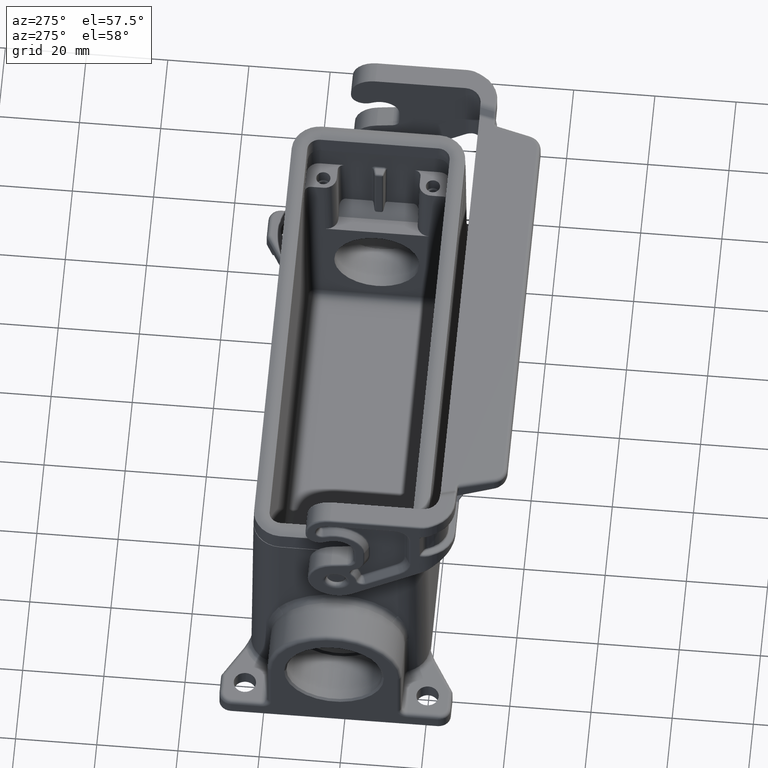
[diagram: clean part render]
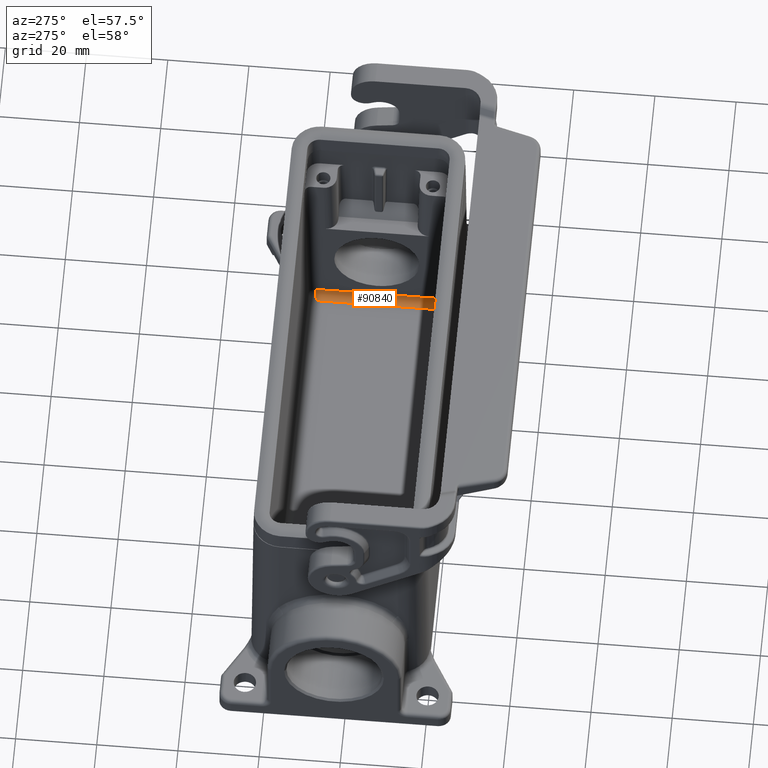
[diagram: same view with one face highlighted and labeled with its STEP entity id]
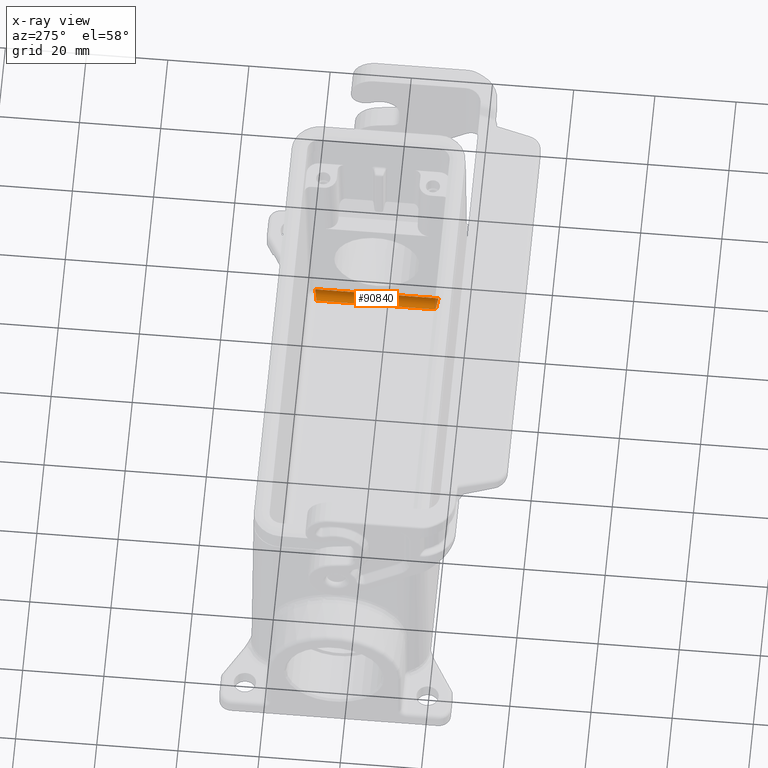
[diagram: x-ray of the same camera — body ghosted, the highlighted face saturated]
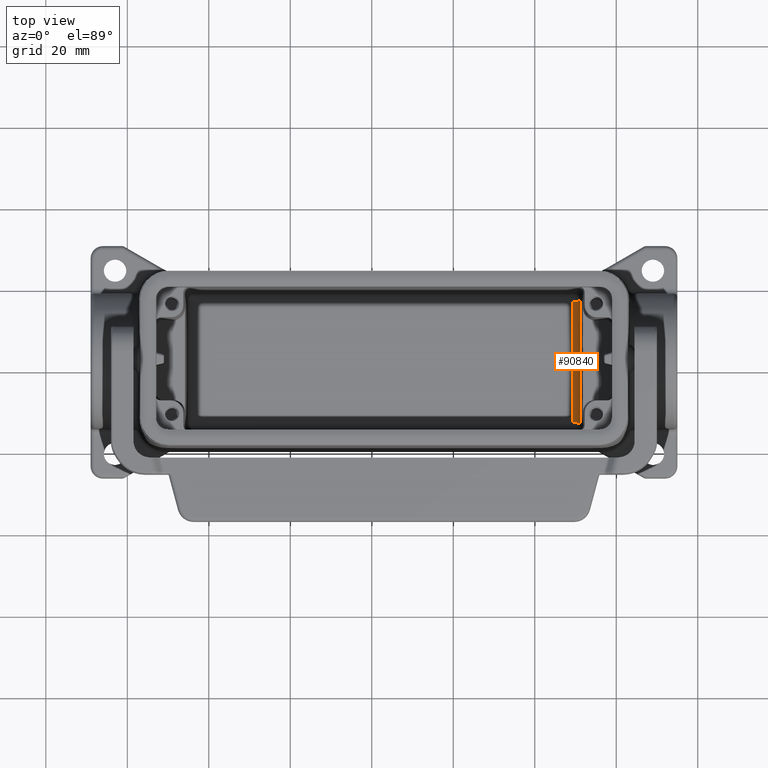
[diagram: same view with one face highlighted and labeled with its STEP entity id]
A machine part, auxiliary view. The second image highlights one B-rep face of the part: STEP entity #90840.
The next image is the same camera in x-ray: the body ghosted, the highlighted face saturated — about 2% of this face is hidden behind the body in this view.
A second angle (top view) of the same face is appended — the face is thin or edge-on in the first view.
In plain terms, the highlighted cylindrical surface (edge-blend (fillet) strip) has radius 2 mm, axis along (0, 1, 0).
Its self-contained STEP definition (entity closure, byte-faithful):
#68120=CARTESIAN_POINT('',(14.7020719719106,-46.2020719719108,4.));
#68130=VERTEX_POINT('',#68120);
#68160=CARTESIAN_POINT('',(0.,-46.2020719719108,4.));
#68170=DIRECTION('',(1.,-9.0514998186E-16,0.));
#68180=VECTOR('',#68170,1.);
#68190=LINE('',#68160,#68180);
#68200=CARTESIAN_POINT('',(-14.7020719719106,-46.2020719719108,4.));
#68210=VERTEX_POINT('',#68200);
#68220=EDGE_CURVE('',#68210,#68130,#68190,.T.);
#72430=CARTESIAN_POINT('',(-15.201936592568,-48.2015304545405,
5.95346209888427));
#72440=VERTEX_POINT('',#72430);
#72490=CARTESIAN_POINT('',(-1.80980980928207E-15,-48.2015304545405,
5.95346209888426));
#72500=DIRECTION('',(1.,-9.0514998186E-16,0.));
#72510=VECTOR('',#72500,1.);
#72520=LINE('',#72490,#72510);
#72530=CARTESIAN_POINT('',(15.201936592568,-48.2015304545405,
5.95346209888426));
#72540=VERTEX_POINT('',#72530);
#72550=EDGE_CURVE('',#72440,#72540,#72520,.T.);
#87380=CARTESIAN_POINT('',(15.201936592568,-48.2015304545405,
5.95346209888426));
#87390=CARTESIAN_POINT('',(15.1602812075132,-48.1955289063517,
5.69561105388252));
#87400=CARTESIAN_POINT('',(15.0769704374025,-48.1037207379365,
5.18177075063066));
#87410=CARTESIAN_POINT('',(14.9936596672972,-47.8530091937385,
4.70248994123824));
#87420=CARTESIAN_POINT('',(14.910348897181,-47.4608151419548,
4.31931808636783));
#87430=CARTESIAN_POINT('',(14.8270381270767,-46.9758303074951,
4.07982678594192));
#87440=CARTESIAN_POINT('',(14.7437273569654,-46.4599928512307,4.));
#87450=CARTESIAN_POINT('',(14.7020719719106,-46.2020719719108,4.));
#87460=B_SPLINE_CURVE_WITH_KNOTS('',6,(#87380,#87390,#87400,#87410,
#87420,#87430,#87440,#87450),.UNSPECIFIED.,.F.,.F.,(7,1,7),(0.,0.5,1.),
.UNSPECIFIED.);
#87470=CARTESIAN_POINT('',(14.9520042822393,-47.5997350106773,
4.56942746915019));
#87480=VERTEX_POINT('',#87470);
#87490=EDGE_CURVE('',#87480,#68130,#87460,.T.);
#90570=CARTESIAN_POINT('',(0.,-46.2020719719108,6.));
#90580=DIRECTION('',(1.,-9.0514998186E-16,0.));
#90590=DIRECTION('',(9.0514998186E-16,1.,0.));
#90600=AXIS2_PLACEMENT_3D('',#90570,#90580,#90590);
#90610=CYLINDRICAL_SURFACE('',#90600,2.);
#90620=CARTESIAN_POINT('',(-14.7020719719106,-46.2020719719107,4.));
#90630=CARTESIAN_POINT('',(-14.7437273569654,-46.4599928512306,4.));
#90640=CARTESIAN_POINT('',(-14.8270381270739,-46.9758303074837,
4.0798267859409));
#90650=CARTESIAN_POINT('',(-14.9103488971875,-47.4608151419809,
4.31931808637021));
#90660=CARTESIAN_POINT('',(-14.9936596672906,-47.8530091937128,
4.70248994123581));
#90670=CARTESIAN_POINT('',(-15.0769704374054,-48.1037207379473,
5.18177075063172));
#90680=CARTESIAN_POINT('',(-15.1602812075132,-48.1955289063517,
5.69561105388253));
#90690=CARTESIAN_POINT('',(-15.201936592568,-48.2015304545405,
5.95346209888427));
#90700=B_SPLINE_CURVE_WITH_KNOTS('',6,(#90620,#90630,#90640,#90650,
#90660,#90670,#90680,#90690),.UNSPECIFIED.,.F.,.F.,(7,1,7),(0.,0.5,1.),
.UNSPECIFIED.);
#90710=CARTESIAN_POINT('',(-14.9520042822393,-47.5997350106773,
4.56942746915018));
#90720=VERTEX_POINT('',#90710);
#90730=EDGE_CURVE('',#90720,#72440,#90700,.T.);
#90740=ORIENTED_EDGE('',*,*,#90730,.T.);
#90750=EDGE_CURVE('',#68210,#90720,#90700,.T.);
#90760=ORIENTED_EDGE('',*,*,#90750,.T.);
#90770=ORIENTED_EDGE('',*,*,#68220,.F.);
#90780=ORIENTED_EDGE('',*,*,#87490,.T.);
#90790=EDGE_CURVE('',#72540,#87480,#87460,.T.);
#90800=ORIENTED_EDGE('',*,*,#90790,.T.);
#90810=ORIENTED_EDGE('',*,*,#72550,.T.);
#90820=EDGE_LOOP('',(#90810,#90800,#90780,#90770,#90760,#90740));
#90830=FACE_OUTER_BOUND('',#90820,.T.);
#90840=ADVANCED_FACE('',(#90830),#90610,.F.);